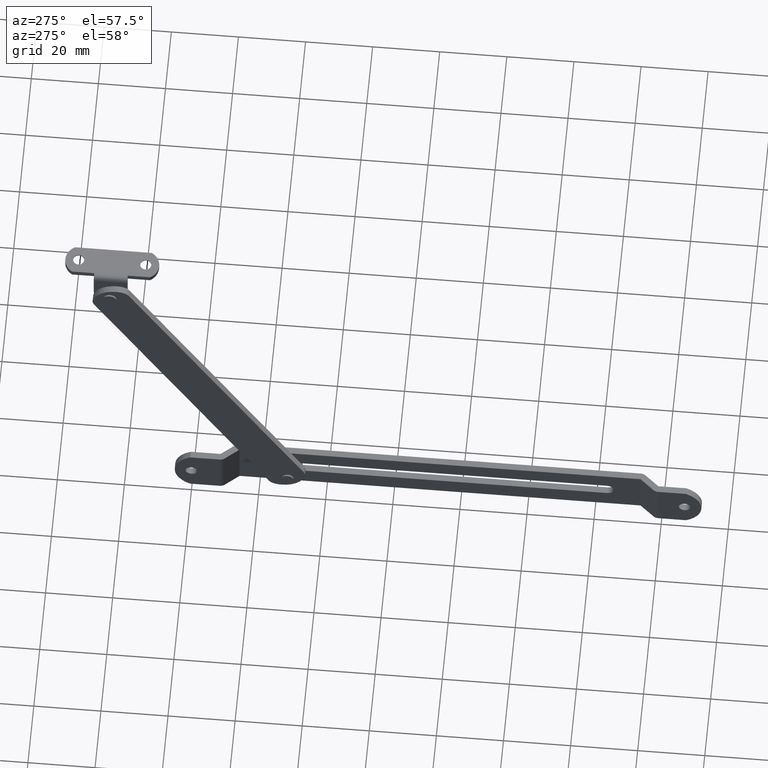
[diagram: clean part render]
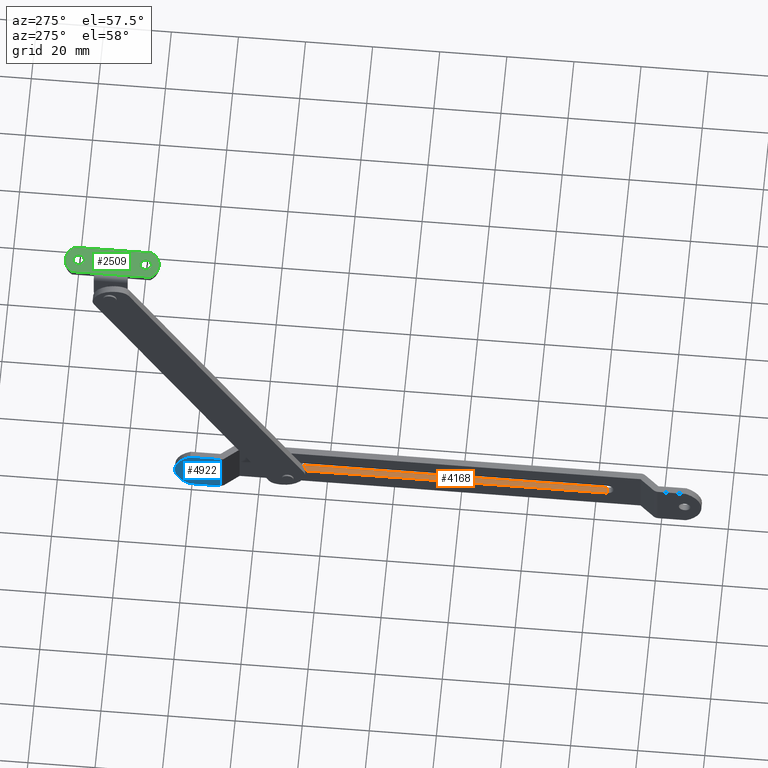
[diagram: same view with three faces highlighted in distinct colors, each labeled with its STEP entity id]
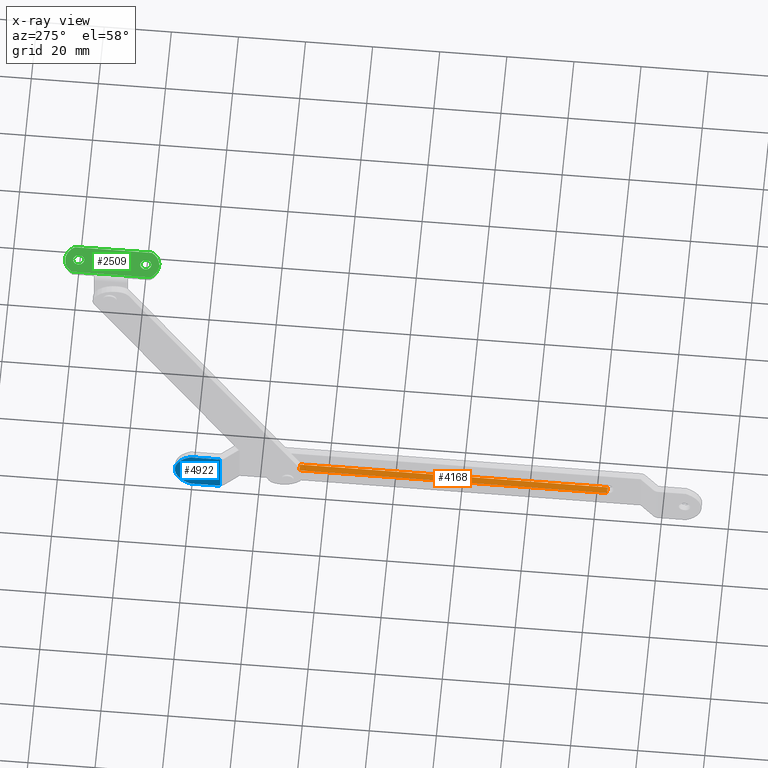
[diagram: x-ray of the same camera — body ghosted, the three highlighted faces saturated]
A machine part, auxiliary view with three faces highlighted in distinct colors.
The next image is the same camera in x-ray (body ghosted, the three faces saturated) — at least one of them is partly hidden behind the body in this view.
Their STEP definitions:

[orange] entity #4168 — the highlighted face is a freeform B-spline surface patch.
#4094=CARTESIAN_POINT('',(4.000000000000116,-31.807403999999998,-1.750000000000000));
#4095=VERTEX_POINT('',#4094);
#4096=CARTESIAN_POINT('',(6.000000000000120,-31.807403999999998,-1.750000000000000));
#4097=VERTEX_POINT('',#4096);
#4098=CARTESIAN_POINT('',(4.000000000000116,-31.807403999999998,-1.750000000000000));
#4099=CARTESIAN_POINT('',(6.000000000000120,-31.807403999999998,-1.750000000000000));
#4100=QUASI_UNIFORM_CURVE('',1,(#4098,#4099),.UNSPECIFIED.,.F.,.U.);
#4101=EDGE_CURVE('',#4095,#4097,#4100,.T.);
#4141=CARTESIAN_POINT('',(3.900100003876503,-128.080044955831800,-1.750000000000000));
#4142=CARTESIAN_POINT('',(3.900100003876503,-27.227356549874550,-1.750000000000000));
#4143=CARTESIAN_POINT('',(6.099900049767914,-128.080044955831800,-1.750000000000000));
#4144=CARTESIAN_POINT('',(6.099900049767914,-27.227356549874550,-1.750000000000000));
#4145=B_SPLINE_SURFACE_WITH_KNOTS('',1,1,((#4141,#4143),(#4142,#4144)),.UNSPECIFIED.,.F.,.F.,.U.,(2,2),(2,2),(0.0,100.852688405957300),(0.0,2.199800045891411),.UNSPECIFIED.);
#4146=CARTESIAN_POINT('',(4.000000000000116,-123.499999965093390,-1.750000000000000));
#4147=VERTEX_POINT('',#4146);
#4148=CARTESIAN_POINT('',(4.000000000000116,-31.807403999999998,-1.750000000000000));
#4149=CARTESIAN_POINT('',(4.000000000000116,-123.499999965093390,-1.750000000000000));
#4150=QUASI_UNIFORM_CURVE('',1,(#4148,#4149),.UNSPECIFIED.,.F.,.U.);
#4151=EDGE_CURVE('',#4095,#4147,#4150,.T.);
#4152=ORIENTED_EDGE('',*,*,#4151,.T.);
#4153=CARTESIAN_POINT('',(6.000000000000120,-123.499999965093390,-1.750000000000000));
#4154=VERTEX_POINT('',#4153);
#4155=CARTESIAN_POINT('',(4.000000000000116,-123.499999965093390,-1.750000000000000));
#4156=CARTESIAN_POINT('',(6.000000000000120,-123.499999965093390,-1.750000000000000));
#4157=QUASI_UNIFORM_CURVE('',1,(#4155,#4156),.UNSPECIFIED.,.F.,.U.);
#4158=EDGE_CURVE('',#4147,#4154,#4157,.T.);
#4159=ORIENTED_EDGE('',*,*,#4158,.T.);
#4160=CARTESIAN_POINT('',(6.000000000000120,-123.499999965093390,-1.750000000000000));
#4161=CARTESIAN_POINT('',(6.000000000000120,-31.807403999999998,-1.750000000000000));
#4162=QUASI_UNIFORM_CURVE('',1,(#4160,#4161),.UNSPECIFIED.,.F.,.U.);
#4163=EDGE_CURVE('',#4154,#4097,#4162,.T.);
#4164=ORIENTED_EDGE('',*,*,#4163,.T.);
#4165=ORIENTED_EDGE('',*,*,#4101,.F.);
#4166=EDGE_LOOP('',(#4152,#4159,#4164,#4165));
#4167=FACE_OUTER_BOUND('',#4166,.T.);
#4168=ADVANCED_FACE('',(#4167),#4145,.F.);

[blue] entity #4922 — the highlighted face is a freeform B-spline surface patch.
#3626=CARTESIAN_POINT('',(-6.938894E-017,1.746735897101530,-0.106834946421634));
#3627=VERTEX_POINT('',#3626);
#3633=CARTESIAN_POINT('',(0.0,0.0,-1.750000000000000));
#3634=VERTEX_POINT('',#3633);
#3635=CARTESIAN_POINT('',(0.0,0.0,-1.750000000000000));
#3636=CARTESIAN_POINT('',(0.0,1.646235612863074,-1.749999999999999));
#3637=CARTESIAN_POINT('',(-6.938894E-017,1.746735897101530,-0.106834946421634));
#3645=(BOUNDED_CURVE()B_SPLINE_CURVE(2,(#3635,#3636,#3637),.UNSPECIFIED.,.F.,.U.)B_SPLINE_CURVE_WITH_KNOTS((3,3),(0.500000000000000,0.739332961800285),.UNSPECIFIED.)CURVE()GEOMETRIC_REPRESENTATION_ITEM()RATIONAL_B_SPLINE_CURVE((1.0,0.719603993800630,0.976072040726590))REPRESENTATION_ITEM(''));
#3646=EDGE_CURVE('',#3634,#3627,#3645,.T.);
#3648=CARTESIAN_POINT('',(-7.098571E-017,-1.737766671117511,0.206559910808377));
#3649=VERTEX_POINT('',#3648);
#3650=CARTESIAN_POINT('',(-7.098571E-017,-1.737766671117511,0.206559910808377));
#3651=CARTESIAN_POINT('',(0.0,-1.750000000000000,0.103642209551574));
#3652=CARTESIAN_POINT('',(0.0,-1.750000000000000,0.0));
#3653=CARTESIAN_POINT('',(0.0,-1.750000000000000,-1.750000000000000));
#3654=CARTESIAN_POINT('',(0.0,0.0,-1.750000000000000));
#3662=(BOUNDED_CURVE()B_SPLINE_CURVE(2,(#3650,#3651,#3652,#3653,#3654),.UNSPECIFIED.,.F.,.U.)B_SPLINE_CURVE_WITH_KNOTS((3,2,3),(0.229562473484708,0.250000000000000,0.500000000000000),.UNSPECIFIED.)CURVE()GEOMETRIC_REPRESENTATION_ITEM()RATIONAL_B_SPLINE_CURVE((0.956026754127250,0.976055948297404,1.0,0.707106781186547,1.0))REPRESENTATION_ITEM(''));
#3663=EDGE_CURVE('',#3649,#3634,#3662,.T.);
#3707=CARTESIAN_POINT('',(0.0,0.0,1.750000000000000));
#3708=VERTEX_POINT('',#3707);
#3709=CARTESIAN_POINT('',(0.0,0.0,1.750000000000000));
#3710=CARTESIAN_POINT('',(0.0,-1.554305420128373,1.750000000000000));
#3711=CARTESIAN_POINT('',(-7.098571E-017,-1.737766671117511,0.206559910808377));
#3719=(BOUNDED_CURVE()B_SPLINE_CURVE(2,(#3709,#3710,#3711),.UNSPECIFIED.,.F.,.U.)B_SPLINE_CURVE_WITH_KNOTS((3,3),(0.0,0.229562473484708),.UNSPECIFIED.)CURVE()GEOMETRIC_REPRESENTATION_ITEM()RATIONAL_B_SPLINE_CURVE((1.0,0.731050832889144,0.956026754127250))REPRESENTATION_ITEM(''));
#3720=EDGE_CURVE('',#3708,#3649,#3719,.T.);
#3722=CARTESIAN_POINT('',(-6.938894E-017,1.746735897101530,-0.106834946421634));
#3723=CARTESIAN_POINT('',(0.0,1.750000000000000,-0.053467338014434));
#3724=CARTESIAN_POINT('',(0.0,1.750000000000000,0.0));
#3725=CARTESIAN_POINT('',(0.0,1.750000000000000,1.750000000000000));
#3726=CARTESIAN_POINT('',(0.0,0.0,1.750000000000000));
#3734=(BOUNDED_CURVE()B_SPLINE_CURVE(2,(#3722,#3723,#3724,#3725,#3726),.UNSPECIFIED.,.F.,.U.)B_SPLINE_CURVE_WITH_KNOTS((3,2,3),(0.739332961800286,0.750000000000000,1.0),.UNSPECIFIED.)CURVE()GEOMETRIC_REPRESENTATION_ITEM()RATIONAL_B_SPLINE_CURVE((0.976072040726591,0.987502787385918,1.0,0.707106781186547,1.0))REPRESENTATION_ITEM(''));
#3735=EDGE_CURVE('',#3627,#3708,#3734,.T.);
#3979=CARTESIAN_POINT('',(0.0,0.381937314617470,-7.249999999999890));
#3980=VERTEX_POINT('',#3979);
#3986=CARTESIAN_POINT('',(0.0,0.381937314617192,7.250000000000000));
#3987=VERTEX_POINT('',#3986);
#3988=CARTESIAN_POINT('',(0.0,0.381937314617192,7.250000000000000));
#3989=CARTESIAN_POINT('',(0.0,5.0,5.095793308008615));
#3990=CARTESIAN_POINT('',(0.0,5.0,-1.742003E-014));
#3991=CARTESIAN_POINT('',(0.0,5.0,-5.095793308008427));
#3992=CARTESIAN_POINT('',(0.0,0.381937314617467,-7.249999999999880));
#4000=(BOUNDED_CURVE()B_SPLINE_CURVE(2,(#3988,#3989,#3990,#3991,#3992),.UNSPECIFIED.,.F.,.U.)B_SPLINE_CURVE_WITH_KNOTS((3,2,3),(0.0,0.500000000000000,1.0),.UNSPECIFIED.)CURVE()GEOMETRIC_REPRESENTATION_ITEM()RATIONAL_B_SPLINE_CURVE((1.0,0.843428172498153,1.0,0.843428172498153,1.0))REPRESENTATION_ITEM(''));
#4001=EDGE_CURVE('',#3987,#3980,#4000,.T.);
#4626=CARTESIAN_POINT('',(7.549517E-015,-8.499999825467070,-7.250000000000091));
#4627=VERTEX_POINT('',#4626);
#4641=CARTESIAN_POINT('',(7.549517E-015,-8.499999825467070,-7.250000000000091));
#4642=CARTESIAN_POINT('',(0.0,0.381937314617470,-7.249999999999890));
#4643=QUASI_UNIFORM_CURVE('',1,(#4641,#4642),.UNSPECIFIED.,.F.,.U.);
#4644=EDGE_CURVE('',#4627,#3980,#4643,.T.);
#4662=CARTESIAN_POINT('',(7.549517E-015,-8.499999825467070,7.250000000000000));
#4663=VERTEX_POINT('',#4662);
#4664=CARTESIAN_POINT('',(7.549517E-015,-8.499999825467070,7.250000000000000));
#4665=CARTESIAN_POINT('',(0.0,0.381937314617192,7.250000000000000));
#4666=QUASI_UNIFORM_CURVE('',1,(#4664,#4665),.UNSPECIFIED.,.F.,.U.);
#4667=EDGE_CURVE('',#4663,#3987,#4666,.T.);
#4901=CARTESIAN_POINT('',(0.0,-9.174325044040211,-7.974274971896282));
#4902=CARTESIAN_POINT('',(0.0,-9.174325044040211,7.974275360816498));
#4903=CARTESIAN_POINT('',(0.0,5.674325339272542,-7.974274971896282));
#4904=CARTESIAN_POINT('',(0.0,5.674325339272542,7.974275360816498));
#4905=B_SPLINE_SURFACE_WITH_KNOTS('',1,1,((#4901,#4903),(#4902,#4904)),.UNSPECIFIED.,.F.,.F.,.U.,(2,2),(2,2),(0.0,15.948550332712781),(0.0,14.848650383312760),.UNSPECIFIED.);
#4906=ORIENTED_EDGE('',*,*,#4001,.T.);
#4907=ORIENTED_EDGE('',*,*,#4644,.F.);
#4908=CARTESIAN_POINT('',(7.549517E-015,-8.499999825467070,7.250000000000000));
#4909=CARTESIAN_POINT('',(7.549517E-015,-8.499999825467070,-7.250000000000091));
#4910=QUASI_UNIFORM_CURVE('',1,(#4908,#4909),.UNSPECIFIED.,.F.,.U.);
#4911=EDGE_CURVE('',#4663,#4627,#4910,.T.);
#4912=ORIENTED_EDGE('',*,*,#4911,.F.);
#4913=ORIENTED_EDGE('',*,*,#4667,.T.);
#4914=EDGE_LOOP('',(#4906,#4907,#4912,#4913));
#4915=FACE_OUTER_BOUND('',#4914,.T.);
#4916=ORIENTED_EDGE('',*,*,#3646,.T.);
#4917=ORIENTED_EDGE('',*,*,#3735,.T.);
#4918=ORIENTED_EDGE('',*,*,#3720,.T.);
#4919=ORIENTED_EDGE('',*,*,#3663,.T.);
#4920=EDGE_LOOP('',(#4916,#4917,#4918,#4919));
#4921=FACE_BOUND('',#4920,.T.);
#4922=ADVANCED_FACE('',(#4915,#4921),#4905,.T.);

[green] entity #2509 — the highlighted face is a freeform B-spline surface patch.
#1598=CARTESIAN_POINT('',(10.100736092350250,12.853077588705050,96.148706000000004));
#1599=VERTEX_POINT('',#1598);
#1605=CARTESIAN_POINT('',(11.650005999999919,14.500000000000000,96.148706000000004));
#1606=VERTEX_POINT('',#1605);
#1607=CARTESIAN_POINT('',(11.650005999999919,14.500000000000000,96.148706000000004));
#1608=CARTESIAN_POINT('',(11.650005999999921,12.947834994292151,96.148706000000004));
#1609=CARTESIAN_POINT('',(10.100736092350250,12.853077588705053,96.148706000000004));
#1617=(BOUNDED_CURVE()B_SPLINE_CURVE(2,(#1607,#1608,#1609),.UNSPECIFIED.,.F.,.U.)B_SPLINE_CURVE_WITH_KNOTS((3,3),(0.500000000000000,0.739332961721959),.UNSPECIFIED.)CURVE()GEOMETRIC_REPRESENTATION_ITEM()RATIONAL_B_SPLINE_CURVE((1.0,0.719603993892395,0.976072040558722))REPRESENTATION_ITEM(''));
#1618=EDGE_CURVE('',#1606,#1599,#1617,.T.);
#1620=CARTESIAN_POINT('',(11.544642899398870,15.080169655657450,96.148706000000004));
#1621=VERTEX_POINT('',#1620);
#1622=CARTESIAN_POINT('',(11.544642899398868,15.080169655657450,96.148706000000004));
#1623=CARTESIAN_POINT('',(11.650005999999921,14.799652187018054,96.148706000000004));
#1624=CARTESIAN_POINT('',(11.650005999999919,14.500000000000000,96.148706000000004));
#1632=(BOUNDED_CURVE()B_SPLINE_CURVE(2,(#1622,#1623,#1624),.UNSPECIFIED.,.F.,.U.)B_SPLINE_CURVE_WITH_KNOTS((3,3),(0.440284170897445,0.500000000000000),.UNSPECIFIED.)CURVE()GEOMETRIC_REPRESENTATION_ITEM()RATIONAL_B_SPLINE_CURVE((0.893499554633973,0.930038554400154,1.0))REPRESENTATION_ITEM(''));
#1633=EDGE_CURVE('',#1621,#1606,#1632,.T.);
#1683=CARTESIAN_POINT('',(8.350005999999919,14.500000000000000,96.148706000000004));
#1684=VERTEX_POINT('',#1683);
#1685=CARTESIAN_POINT('',(8.350005999999919,14.500000000000000,96.148706000000004));
#1686=CARTESIAN_POINT('',(8.350005999999919,16.150000000000009,96.148706000000018));
#1687=CARTESIAN_POINT('',(10.000005999999919,16.149999999999999,96.148706000000004));
#1688=CARTESIAN_POINT('',(11.142811832884393,16.150000000000009,96.148706000000018));
#1689=CARTESIAN_POINT('',(11.544642899398868,15.080169655657450,96.148706000000004));
#1697=(BOUNDED_CURVE()B_SPLINE_CURVE(2,(#1685,#1686,#1687,#1688,#1689),.UNSPECIFIED.,.F.,.U.)B_SPLINE_CURVE_WITH_KNOTS((3,2,3),(0.0,0.250000000000000,0.440284170897445),.UNSPECIFIED.)CURVE()GEOMETRIC_REPRESENTATION_ITEM()RATIONAL_B_SPLINE_CURVE((1.0,0.707106781186548,1.0,0.777068226786393,0.893499554633973))REPRESENTATION_ITEM(''));
#1698=EDGE_CURVE('',#1684,#1621,#1697,.T.);
#1700=CARTESIAN_POINT('',(10.100736092350250,12.853077588705052,96.148706000000004));
#1701=CARTESIAN_POINT('',(10.050418061931243,12.850000000000000,96.148705999999990));
#1702=CARTESIAN_POINT('',(10.000005999999919,12.850000000000000,96.148706000000004));
#1703=CARTESIAN_POINT('',(8.350005999999919,12.850000000000000,96.148706000000018));
#1704=CARTESIAN_POINT('',(8.350005999999919,14.500000000000000,96.148706000000004));
#1712=(BOUNDED_CURVE()B_SPLINE_CURVE(2,(#1700,#1701,#1702,#1703,#1704),.UNSPECIFIED.,.F.,.U.)B_SPLINE_CURVE_WITH_KNOTS((3,2,3),(0.739332961721958,0.750000000000000,1.0),.UNSPECIFIED.)CURVE()GEOMETRIC_REPRESENTATION_ITEM()RATIONAL_B_SPLINE_CURVE((0.976072040558721,0.987502787294152,1.0,0.707106781186548,1.0))REPRESENTATION_ITEM(''));
#1713=EDGE_CURVE('',#1599,#1684,#1712,.T.);
#1926=CARTESIAN_POINT('',(10.100736092350250,32.853077588705048,96.148706000000004));
#1927=VERTEX_POINT('',#1926);
#1933=CARTESIAN_POINT('',(11.650005999999919,34.500000000000000,96.148706000000004));
#1934=VERTEX_POINT('',#1933);
#1935=CARTESIAN_POINT('',(11.650005999999919,34.500000000000000,96.148706000000004));
#1936=CARTESIAN_POINT('',(11.650005999999921,32.947834994292158,96.148706000000004));
#1937=CARTESIAN_POINT('',(10.100736092350250,32.853077588705048,96.148706000000004));
#1945=(BOUNDED_CURVE()B_SPLINE_CURVE(2,(#1935,#1936,#1937),.UNSPECIFIED.,.F.,.U.)B_SPLINE_CURVE_WITH_KNOTS((3,3),(0.500000000000000,0.739332961721959),.UNSPECIFIED.)CURVE()GEOMETRIC_REPRESENTATION_ITEM()RATIONAL_B_SPLINE_CURVE((1.0,0.719603993892395,0.976072040558722))REPRESENTATION_ITEM(''));
#1946=EDGE_CURVE('',#1934,#1927,#1945,.T.);
#1948=CARTESIAN_POINT('',(11.544642899398870,35.080169655657457,96.148706000000004));
#1949=VERTEX_POINT('',#1948);
#1950=CARTESIAN_POINT('',(11.544642899398870,35.080169655657457,96.148706000000004));
#1951=CARTESIAN_POINT('',(11.650005999999921,34.799652187018069,96.148706000000004));
#1952=CARTESIAN_POINT('',(11.650005999999919,34.500000000000000,96.148706000000004));
#1960=(BOUNDED_CURVE()B_SPLINE_CURVE(2,(#1950,#1951,#1952),.UNSPECIFIED.,.F.,.U.)B_SPLINE_CURVE_WITH_KNOTS((3,3),(0.440284170897444,0.500000000000000),.UNSPECIFIED.)CURVE()GEOMETRIC_REPRESENTATION_ITEM()RATIONAL_B_SPLINE_CURVE((0.893499554633972,0.930038554400153,1.0))REPRESENTATION_ITEM(''));
#1961=EDGE_CURVE('',#1949,#1934,#1960,.T.);
#2011=CARTESIAN_POINT('',(8.350005999999919,34.500000000000000,96.148706000000004));
#2012=VERTEX_POINT('',#2011);
#2013=CARTESIAN_POINT('',(8.350005999999919,34.500000000000000,96.148706000000004));
#2014=CARTESIAN_POINT('',(8.350005999999919,36.149999999999991,96.148706000000018));
#2015=CARTESIAN_POINT('',(10.000005999999919,36.149999999999999,96.148706000000004));
#2016=CARTESIAN_POINT('',(11.142811832884387,36.150000000000006,96.148706000000018));
#2017=CARTESIAN_POINT('',(11.544642899398870,35.080169655657457,96.148706000000004));
#2025=(BOUNDED_CURVE()B_SPLINE_CURVE(2,(#2013,#2014,#2015,#2016,#2017),.UNSPECIFIED.,.F.,.U.)B_SPLINE_CURVE_WITH_KNOTS((3,2,3),(0.0,0.250000000000000,0.440284170897444),.UNSPECIFIED.)CURVE()GEOMETRIC_REPRESENTATION_ITEM()RATIONAL_B_SPLINE_CURVE((1.0,0.707106781186548,1.0,0.777068226786394,0.893499554633972))REPRESENTATION_ITEM(''));
#2026=EDGE_CURVE('',#2012,#1949,#2025,.T.);
#2028=CARTESIAN_POINT('',(10.100736092350250,32.853077588705048,96.148706000000004));
#2029=CARTESIAN_POINT('',(10.050418061931245,32.850000000000009,96.148705999999990));
#2030=CARTESIAN_POINT('',(10.000005999999919,32.850000000000001,96.148706000000004));
#2031=CARTESIAN_POINT('',(8.350005999999919,32.850000000000001,96.148706000000018));
#2032=CARTESIAN_POINT('',(8.350005999999919,34.500000000000000,96.148706000000004));
#2040=(BOUNDED_CURVE()B_SPLINE_CURVE(2,(#2028,#2029,#2030,#2031,#2032),.UNSPECIFIED.,.F.,.U.)B_SPLINE_CURVE_WITH_KNOTS((3,2,3),(0.739332961721958,0.750000000000000,1.0),.UNSPECIFIED.)CURVE()GEOMETRIC_REPRESENTATION_ITEM()RATIONAL_B_SPLINE_CURVE((0.976072040558720,0.987502787294152,1.0,0.707106781186548,1.0))REPRESENTATION_ITEM(''));
#2041=EDGE_CURVE('',#1927,#2012,#2040,.T.);
#2220=CARTESIAN_POINT('',(5.700005999999920,29.500000000000000,96.148706000000004));
#2221=VERTEX_POINT('',#2220);
#2244=CARTESIAN_POINT('',(5.700005999999870,19.500000000000000,96.148706000000004));
#2245=VERTEX_POINT('',#2244);
#2261=CARTESIAN_POINT('',(5.700005999999920,29.500000000000000,96.148706000000004));
#2262=CARTESIAN_POINT('',(5.700005999999870,19.500000000000000,96.148706000000004));
#2263=QUASI_UNIFORM_CURVE('',1,(#2261,#2262),.UNSPECIFIED.,.F.,.U.);
#2264=EDGE_CURVE('',#2221,#2245,#2263,.T.);
#2436=CARTESIAN_POINT('',(5.270436016668331,9.102457282506014,96.148706000000004));
#2437=CARTESIAN_POINT('',(14.729576214001510,9.102457282506014,96.148706000000004));
#2438=CARTESIAN_POINT('',(5.270436016668331,39.897543471912769,96.148706000000004));
#2439=CARTESIAN_POINT('',(14.729576214001510,39.897543471912769,96.148706000000004));
#2440=B_SPLINE_SURFACE_WITH_KNOTS('',1,1,((#2436,#2438),(#2437,#2439)),.UNSPECIFIED.,.F.,.F.,.U.,(2,2),(2,2),(0.0,9.459140197333182),(0.0,30.795086189406749),.UNSPECIFIED.);
#2441=CARTESIAN_POINT('',(5.700006017604220,36.133913466618957,96.148706000000004));
#2442=VERTEX_POINT('',#2441);
#2443=CARTESIAN_POINT('',(5.700006017604220,36.133913466618957,96.148706000000004));
#2444=CARTESIAN_POINT('',(5.700005999999920,29.500000000000000,96.148706000000004));
#2445=QUASI_UNIFORM_CURVE('',1,(#2443,#2444),.UNSPECIFIED.,.F.,.U.);
#2446=EDGE_CURVE('',#2442,#2221,#2445,.T.);
#2447=ORIENTED_EDGE('',*,*,#2446,.T.);
#2448=ORIENTED_EDGE('',*,*,#2264,.T.);
#2449=CARTESIAN_POINT('',(5.700006017604240,12.866086533381020,96.148706000000004));
#2450=VERTEX_POINT('',#2449);
#2451=CARTESIAN_POINT('',(5.700005999999870,19.500000000000000,96.148706000000004));
#2452=CARTESIAN_POINT('',(5.700006017604240,12.866086533381020,96.148706000000004));
#2453=QUASI_UNIFORM_CURVE('',1,(#2451,#2452),.UNSPECIFIED.,.F.,.U.);
#2454=EDGE_CURVE('',#2245,#2450,#2453,.T.);
#2455=ORIENTED_EDGE('',*,*,#2454,.T.);
#2456=CARTESIAN_POINT('',(14.300005978492621,13.034741354925719,96.148706000000004));
#2457=VERTEX_POINT('',#2456);
#2458=CARTESIAN_POINT('',(14.300005978492679,13.034741354925689,96.148706000000004));
#2459=CARTESIAN_POINT('',(12.895695612950561,10.556806606735737,96.148706000000004));
#2460=CARTESIAN_POINT('',(10.048042279062461,10.500961203592480,96.148706000000004));
#2461=CARTESIAN_POINT('',(7.200388945174358,10.445115800449212,96.148706000000004));
#2462=CARTESIAN_POINT('',(5.700006017604307,12.866086533381059,96.148706000000004));
#2470=(BOUNDED_CURVE()B_SPLINE_CURVE(2,(#2458,#2459,#2460,#2461,#2462),.UNSPECIFIED.,.F.,.U.)B_SPLINE_CURVE_WITH_KNOTS((3,2,3),(0.0,0.500000000000000,1.0),.UNSPECIFIED.)CURVE()GEOMETRIC_REPRESENTATION_ITEM()RATIONAL_B_SPLINE_CURVE((1.0,0.868911749508760,1.0,0.868911749508760,1.0))REPRESENTATION_ITEM(''));
#2471=EDGE_CURVE('',#2457,#2450,#2470,.T.);
#2472=ORIENTED_EDGE('',*,*,#2471,.F.);
#2473=CARTESIAN_POINT('',(14.300006000000000,35.965259000000003,96.148706000000004));
#2474=VERTEX_POINT('',#2473);
#2475=CARTESIAN_POINT('',(14.300005978492621,13.034741354925719,96.148706000000004));
#2476=CARTESIAN_POINT('',(14.300006000000000,35.965259000000003,96.148706000000004));
#2477=QUASI_UNIFORM_CURVE('',1,(#2475,#2476),.UNSPECIFIED.,.F.,.U.);
#2478=EDGE_CURVE('',#2457,#2474,#2477,.T.);
#2479=ORIENTED_EDGE('',*,*,#2478,.T.);
#2480=CARTESIAN_POINT('',(5.700006017604288,36.133913466618907,96.148706000000004));
#2481=CARTESIAN_POINT('',(7.200388893162717,38.554884115626479,96.148706000000004));
#2482=CARTESIAN_POINT('',(10.048042130000541,38.499038799330783,96.148706000000004));
#2483=CARTESIAN_POINT('',(12.895695366838366,38.443193483035081,96.148706000000004));
#2484=CARTESIAN_POINT('',(14.300006000000000,35.965259000000003,96.148706000000004));
#2492=(BOUNDED_CURVE()B_SPLINE_CURVE(2,(#2480,#2481,#2482,#2483,#2484),.UNSPECIFIED.,.F.,.U.)B_SPLINE_CURVE_WITH_KNOTS((3,2,3),(0.0,0.500000000000000,1.0),.UNSPECIFIED.)CURVE()GEOMETRIC_REPRESENTATION_ITEM()RATIONAL_B_SPLINE_CURVE((1.0,0.868911756888251,1.0,0.868911756888251,1.0))REPRESENTATION_ITEM(''));
#2493=EDGE_CURVE('',#2442,#2474,#2492,.T.);
#2494=ORIENTED_EDGE('',*,*,#2493,.F.);
#2495=EDGE_LOOP('',(#2447,#2448,#2455,#2472,#2479,#2494));
#2496=FACE_OUTER_BOUND('',#2495,.T.);
#2497=ORIENTED_EDGE('',*,*,#1946,.T.);
#2498=ORIENTED_EDGE('',*,*,#2041,.T.);
#2499=ORIENTED_EDGE('',*,*,#2026,.T.);
#2500=ORIENTED_EDGE('',*,*,#1961,.T.);
#2501=EDGE_LOOP('',(#2497,#2498,#2499,#2500));
#2502=FACE_BOUND('',#2501,.T.);
#2503=ORIENTED_EDGE('',*,*,#1618,.T.);
#2504=ORIENTED_EDGE('',*,*,#1713,.T.);
#2505=ORIENTED_EDGE('',*,*,#1698,.T.);
#2506=ORIENTED_EDGE('',*,*,#1633,.T.);
#2507=EDGE_LOOP('',(#2503,#2504,#2505,#2506));
#2508=FACE_BOUND('',#2507,.T.);
#2509=ADVANCED_FACE('',(#2496,#2502,#2508),#2440,.T.);